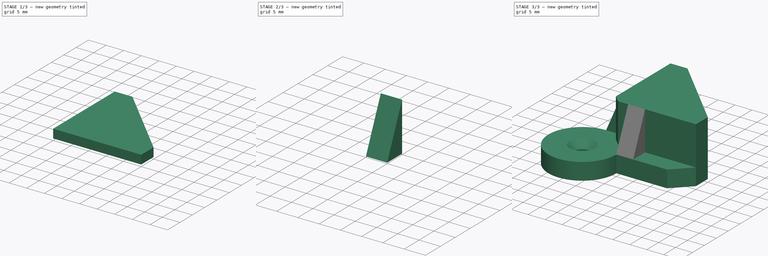
[diagram: build sequence overview — one tinted view per stage of 3, left to right]
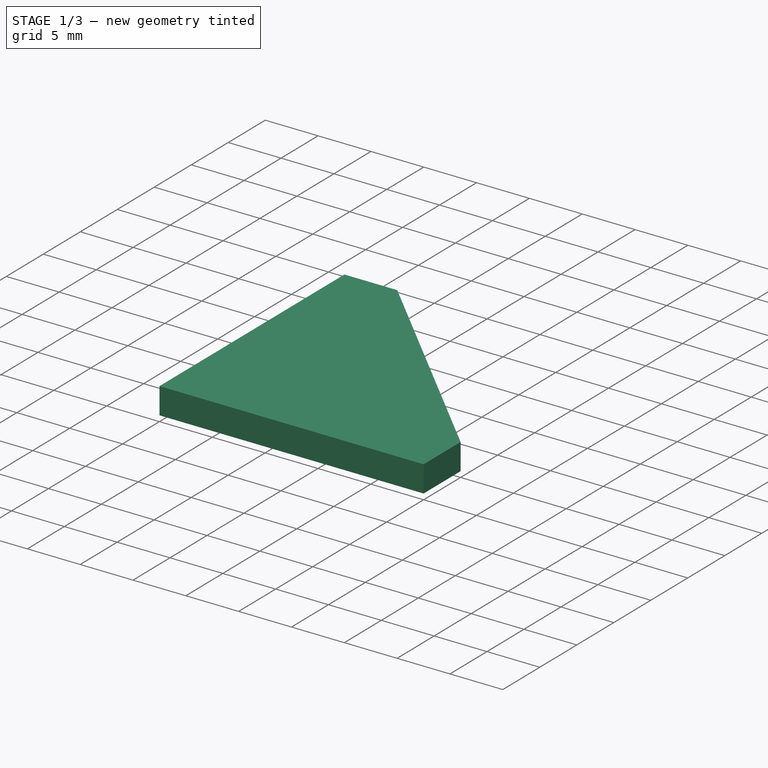
[diagram: stage 1 of 3 — iso view after this stage's code; geometry added in this stage tinted green]
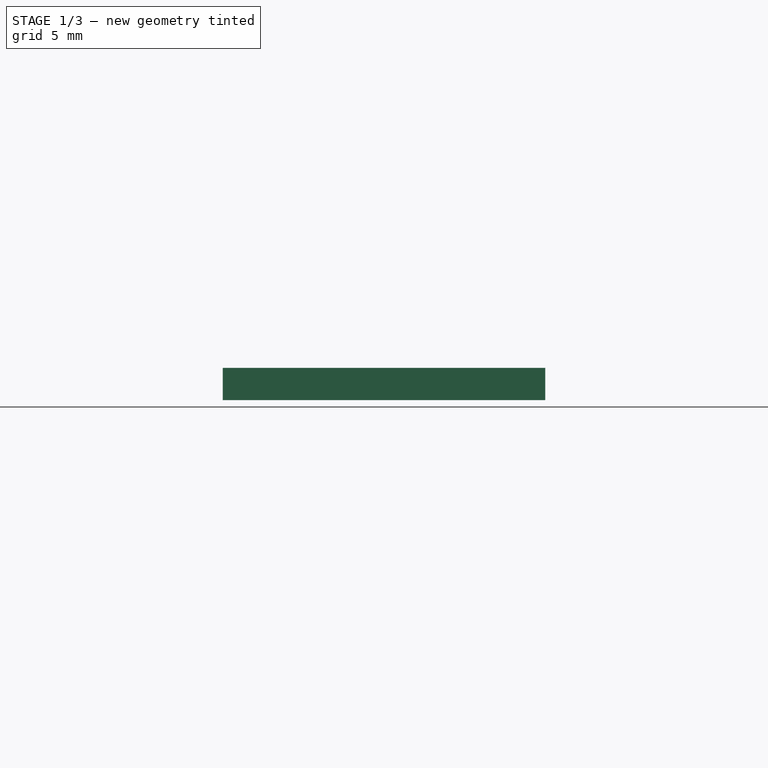
[diagram: stage 1 of 3 — front view after this stage's code; geometry added in this stage tinted green]
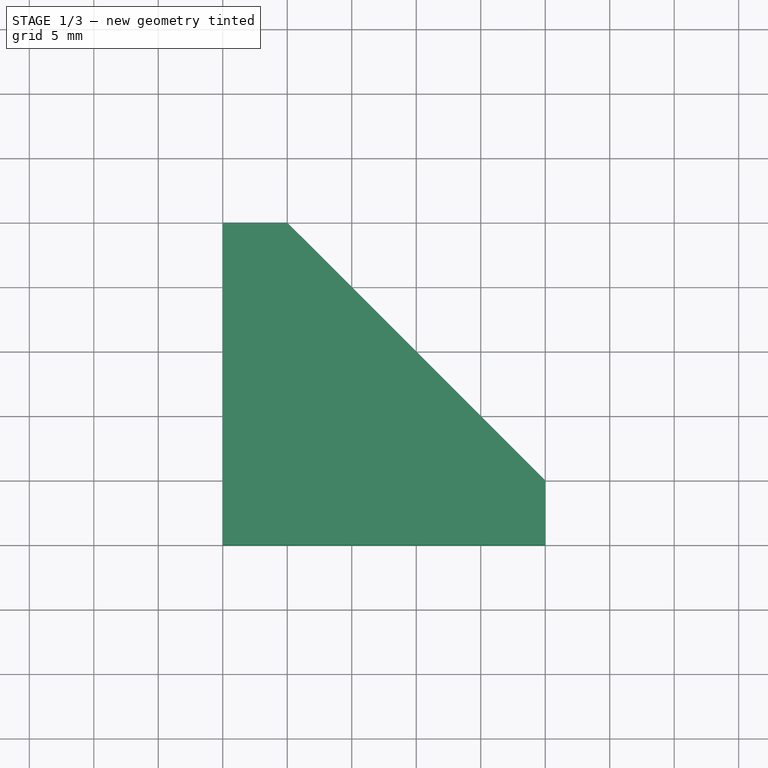
[diagram: stage 1 of 3 — top view after this stage's code; geometry added in this stage tinted green]
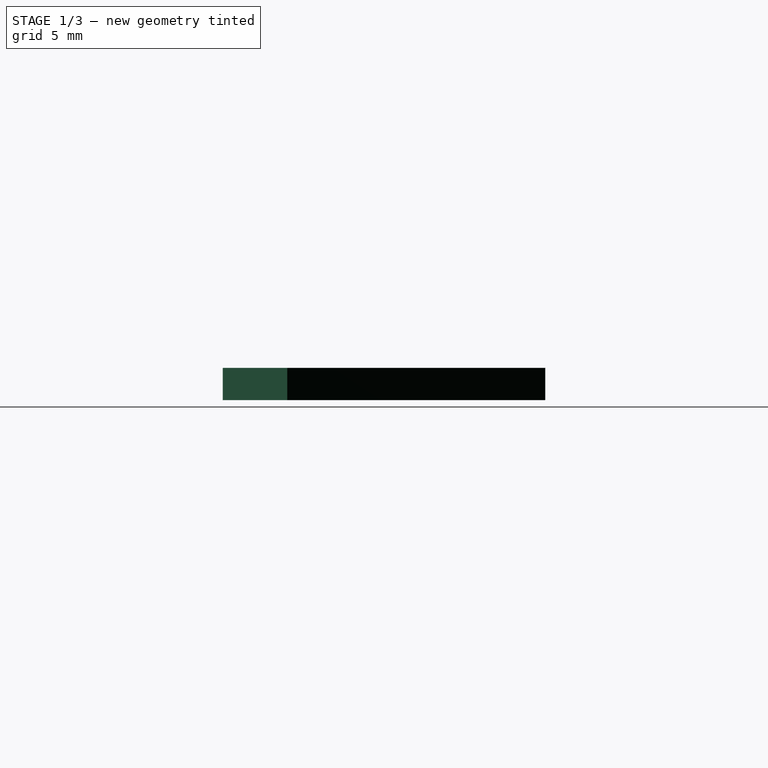
[diagram: stage 1 of 3 — right view after this stage's code; geometry added in this stage tinted green]
FCSTD DOCUMENT  (FreeCAD 0.19R)
Label: CANTONEIRA-01
License: All rights reserved
LicenseURL: http://en.wikipedia.org/wiki/All_rights_reserved
objects: Sketcher::SketchObject×4, Part::Extrusion×4, Part::MultiFuse×2, Spreadsheet::Sheet×1, Part::Mirroring×1, Part::Chamfer×1
note: 12 computed .brp shape members not serialized (recipe doc carries the construction recipe); baked Part::Feature solids carry a one-line shape summary decoded from their .brp

FEATURE [Spreadsheet::Sheet] Spreadsheet
  cells = A1=comprimento; B1(comprimento)=30; A2=largura; B2(largura)==comprimento; A3=altura; B3(altura)=14; A4=espessura; B4(espessura)=5; A5=diametro maior; B5(Diametro)=20; A6=diametro menor; B6(diametro)=3.5
FEATURE [Sketcher::SketchObject] Sketch
  FullyConstrained = true
  expr: Constraints[5] = Spreadsheet.Diametro
  expr: Constraints[23] = Spreadsheet.comprimento
  expr: Constraints[21] = Spreadsheet.espessura
  expr: Constraints[7] = Spreadsheet.diametro
  sketch-geometry (18):
    g0: LineSegment StartX=5 StartY=30 StartZ=0 EndX=10 EndY=30 EndZ=0
    g1: LineSegment StartX=30 StartY=10 StartZ=0 EndX=30 EndY=5 EndZ=0
    g2: LineSegment StartX=25 StartY=-6.89626e-11 StartZ=0 EndX=10 EndY=-6.89626e-11 EndZ=0
    g3: LineSegment StartX=30 StartY=10 StartZ=0 EndX=10 EndY=10 EndZ=0
    g4: LineSegment StartX=10 StartY=10 StartZ=0 EndX=10 EndY=30 EndZ=0
    g5: ArcOfCircle CenterX=-2.7533e-12 CenterY=3.6289e-11 CenterZ=0 NormalX=0 NormalY=0 NormalZ=1 AngleXU=0 Radius=10 StartAngle=1.5708 EndAngle=6.28319
    g6: LineSegment StartX=-2.414e-13 StartY=10 StartZ=0 EndX=-5.21648e-10 EndY=25 EndZ=0
    g7: Circle CenterX=-2.7533e-12 CenterY=3.6289e-11 CenterZ=0 NormalX=0 NormalY=0 NormalZ=1 AngleXU=0 Radius=1.75
    g8: LineSegment StartX=30 StartY=5 StartZ=0 EndX=25 EndY=-6.89626e-11 EndZ=0
    g9: LineSegment StartX=5 StartY=30 StartZ=0 EndX=-5.21648e-10 EndY=25 EndZ=0
    g10: LineSegment StartX=30 StartY=5 StartZ=0 EndX=25 EndY=5 EndZ=0
    g11: LineSegment StartX=25 StartY=5 StartZ=0 EndX=25 EndY=-6.89626e-11 EndZ=0
    g12: LineSegment StartX=25 StartY=-6.89626e-11 StartZ=0 EndX=30 EndY=-6.89626e-11 EndZ=0
    g13: LineSegment StartX=30 StartY=-6.89626e-11 StartZ=0 EndX=30 EndY=5 EndZ=0
    g14: LineSegment StartX=5 StartY=30 StartZ=0 EndX=-5.21648e-10 EndY=30 EndZ=0
    g15: LineSegment StartX=-5.21648e-10 StartY=30 StartZ=0 EndX=-5.21648e-10 EndY=25 EndZ=0
    g16: LineSegment StartX=-5.21648e-10 StartY=25 StartZ=0 EndX=5 EndY=25 EndZ=0
    g17: LineSegment StartX=5 StartY=25 StartZ=0 EndX=5 EndY=30 EndZ=0
  constraints (49):
    c: Coincident(g5,g-1)
    c: Coincident(g5,g6)
    c: Coincident(g2,g5)
    c: PointOnObject(g5,g-2)
    c: PointOnObject(g2,g-1)
    c: Diameter(g5) = 20
    c: Coincident(g7,g5)
    c: Diameter(g7) = 3.5
    c: Coincident(g1,g8)
    c: Coincident(g2,g8)
    c: Coincident(g6,g9)
    c: Horizontal(g2)
    c: Vertical(g1)
    c: Coincident(g1,g3)
    c: Horizontal(g0)
    c: Equal(g4,g3)
    c: Equal(g6,g2)
    c: Equal(g0,g1)
    c: Horizontal(g3)
    c: Vertical(g4)
    c: Coincident(g0,g4)
    c: DistanceY(g1,g1) = 5
    c: Coincident(g3,g4)
    c: DistanceX(g1) = 30
    c: Coincident(g0,g9)
    c: Coincident(g10,g11)
    c: Coincident(g11,g12)
    c: Coincident(g12,g13)
    c: Coincident(g13,g10)
    c: Horizontal(g10)
    c: Horizontal(g12)
    c: Vertical(g11)
    c: Vertical(g13)
    c: Coincident(g10,g1)
    c: Equal(g13,g1)
    c: Coincident(g2,g11)
    c: Coincident(g14,g15)
    c: Coincident(g15,g16)
    c: Coincident(g16,g17)
    c: Coincident(g17,g14)
    c: Horizontal(g14)
    c: Horizontal(g16)
    c: Vertical(g15)
    c: Vertical(g17)
    c: Coincident(g14,g0)
    c: Coincident(g15,g6)
    c: Equal(g13,g10)
    c: Equal(g17,g16)
    c: Equal(g16,g0)
FEATURE [Part::Extrusion] Extrude
  Base = -> Sketch
  Dir = (0,0,1)
  DirMode = 2
  FaceMakerClass = Part::FaceMakerBullseye
  LengthFwd = 5
  LengthRev = 0
  Solid = true
  Symmetric = false
  expr: LengthFwd = Spreadsheet.espessura
FEATURE [Sketcher::SketchObject] Sketch001
  FullyConstrained = true
  MapMode = 5
  Placement = pos=(0,0,5) rot=(0,0,1;0rad)
  Support = -> [Extrude]
  expr: Constraints[5] = Sketch.Constraints[5]
  expr: Constraints[7] = Sketch.Constraints[7]
  expr: Constraints[21] = Sketch.Constraints[21]
  expr: Constraints[23] = Sketch.Constraints[23]
  sketch-geometry (20):
    g0: LineSegment StartX=5 StartY=30 StartZ=0 EndX=10 EndY=30 EndZ=0
    g1: LineSegment StartX=30 StartY=10 StartZ=0 EndX=30 EndY=5 EndZ=0
    g2: LineSegment StartX=25 StartY=-3.45596e-11 StartZ=0 EndX=10 EndY=-3.45596e-11 EndZ=0
    g3: LineSegment StartX=30 StartY=10 StartZ=0 EndX=10 EndY=10 EndZ=0
    g4: LineSegment StartX=10 StartY=10 StartZ=0 EndX=10 EndY=30 EndZ=0
    g5: ArcOfCircle CenterX=-1.971e-12 CenterY=1.94086e-11 CenterZ=0 NormalX=0 NormalY=0 NormalZ=1 AngleXU=0 Radius=10 StartAngle=1.5708 EndAngle=6.28319
    g6: LineSegment StartX=6.998e-12 StartY=10 StartZ=0 EndX=-5.08798e-10 EndY=25 EndZ=0
    g7: Circle CenterX=-1.971e-12 CenterY=1.94086e-11 CenterZ=0 NormalX=0 NormalY=0 NormalZ=1 AngleXU=0 Radius=1.75
    g8: LineSegment StartX=30 StartY=5 StartZ=0 EndX=25 EndY=-3.45599e-11 EndZ=0
    g9: LineSegment StartX=5 StartY=30 StartZ=0 EndX=-5.08798e-10 EndY=25 EndZ=0
    g10: LineSegment StartX=30 StartY=5 StartZ=0 EndX=25 EndY=5 EndZ=0
    g11: LineSegment StartX=25 StartY=5 StartZ=0 EndX=25 EndY=-3.45599e-11 EndZ=0
    g12: LineSegment StartX=25 StartY=-3.45596e-11 StartZ=0 EndX=30 EndY=-3.45596e-11 EndZ=0
    g13: LineSegment StartX=30 StartY=-3.45596e-11 StartZ=0 EndX=30 EndY=5 EndZ=0
    g14: LineSegment StartX=5 StartY=30 StartZ=0 EndX=-5.08798e-10 EndY=30 EndZ=0
    g15: LineSegment StartX=-5.08798e-10 StartY=30 StartZ=0 EndX=-5.08798e-10 EndY=25 EndZ=0
    g16: LineSegment StartX=-5.08798e-10 StartY=25 StartZ=0 EndX=5 EndY=25 EndZ=0
    g17: LineSegment StartX=5 StartY=25 StartZ=0 EndX=5 EndY=30 EndZ=0
    g18: LineSegment StartX=5 StartY=30 StartZ=0 EndX=5 EndY=5 EndZ=0
    g19: LineSegment StartX=5 StartY=5 StartZ=0 EndX=30 EndY=5 EndZ=0
  constraints (54):
    c: Coincident(g5,g-1)
    c: Coincident(g5,g6)
    c: Coincident(g2,g5)
    c: PointOnObject(g5,g-2)
    c: PointOnObject(g2,g-1)
    c: Diameter(g5) = 20
    c: Coincident(g7,g5)
    c: Diameter(g7) = 3.5
    c: Coincident(g1,g8)
    c: Coincident(g2,g8)
    c: Coincident(g6,g9)
    c: Horizontal(g2)
    c: Vertical(g1)
    c: Coincident(g1,g3)
    c: Horizontal(g0)
    c: Equal(g4,g3)
    c: Equal(g6,g2)
    c: Equal(g0,g1)
    c: Horizontal(g3)
    c: Vertical(g4)
    c: Coincident(g0,g4)
    c: DistanceY(g1,g1) = 5
    c: Coincident(g3,g4)
    c: DistanceX(g1) = 30
    c: Coincident(g0,g9)
    c: Coincident(g10,g11)
    c: Coincident(g11,g12)
    c: Coincident(g12,g13)
    c: Coincident(g13,g10)
    c: Horizontal(g10)
    c: Horizontal(g12)
    c: Vertical(g11)
    c: Vertical(g13)
    c: Coincident(g10,g1)
    c: Equal(g13,g1)
    c: Coincident(g2,g11)
    c: Coincident(g14,g15)
    c: Coincident(g15,g16)
    c: Coincident(g16,g17)
    c: Coincident(g17,g14)
    c: Horizontal(g14)
    c: Horizontal(g16)
    c: Vertical(g15)
    c: Vertical(g17)
    c: Coincident(g14,g0)
    c: Coincident(g15,g6)
    c: Equal(g13,g10)
    c: Equal(g17,g16)
    c: Equal(g16,g0)
    c: Coincident(g0,g18)
    c: Vertical(g18)
    c: Coincident(g18,g19)
    c: Coincident(g19,g1)
    c: Horizontal(g19)
FEATURE [Part::Extrusion] Extrude001
  Base = -> Sketch001
  Dir = (0,0,1)
  DirMode = 2
  FaceMakerClass = Part::FaceMakerBullseye
  LengthFwd = 9
  LengthRev = 0
  Solid = true
  Symmetric = false
  expr: LengthFwd = Spreadsheet.altura - Spreadsheet.espessura
FEATURE [Sketcher::SketchObject] Sketch002
  FullyConstrained = true
  MapMode = 5
  Placement = pos=(0,0,14) rot=(0,0,1;0rad)
  Support = -> [Extrude001]
  expr: Constraints[5] = Sketch.Constraints[5]
  expr: Constraints[7] = Sketch.Constraints[7]
  expr: Constraints[21] = Sketch.Constraints[21]
  expr: Constraints[23] = Sketch.Constraints[23]
  sketch-geometry (21):
    g0: LineSegment StartX=5 StartY=30 StartZ=0 EndX=10 EndY=30 EndZ=0
    g1: LineSegment StartX=30 StartY=10 StartZ=0 EndX=30 EndY=5 EndZ=0
    g2: LineSegment StartX=25 StartY=-2.2e-15 StartZ=0 EndX=10 EndY=-2.2e-15 EndZ=0
    g3: LineSegment StartX=30 StartY=10 StartZ=0 EndX=10 EndY=10 EndZ=0
    g4: LineSegment StartX=10 StartY=10 StartZ=0 EndX=10 EndY=30 EndZ=0
    g5: ArcOfCircle CenterX=0 CenterY=2e-16 CenterZ=0 NormalX=0 NormalY=0 NormalZ=1 AngleXU=0 Radius=10 StartAngle=1.5708 EndAngle=6.28319
    g6: LineSegment StartX=6e-16 StartY=10 StartZ=0 EndX=9e-16 EndY=25 EndZ=0
    g7: Circle CenterX=0 CenterY=2e-16 CenterZ=0 NormalX=0 NormalY=0 NormalZ=1 AngleXU=0 Radius=1.75
    g8: LineSegment StartX=30 StartY=5 StartZ=0 EndX=25 EndY=-1.8e-15 EndZ=0
    g9: LineSegment StartX=5 StartY=30 StartZ=0 EndX=9e-16 EndY=25 EndZ=0
    g10: LineSegment StartX=30 StartY=5 StartZ=0 EndX=25 EndY=5 EndZ=0
    g11: LineSegment StartX=25 StartY=5 StartZ=0 EndX=25 EndY=-1.8e-15 EndZ=0
    g12: LineSegment StartX=25 StartY=-2.2e-15 StartZ=0 EndX=30 EndY=-2.2e-15 EndZ=0
    g13: LineSegment StartX=30 StartY=-2.2e-15 StartZ=0 EndX=30 EndY=5 EndZ=0
    g14: LineSegment StartX=5 StartY=30 StartZ=0 EndX=9e-16 EndY=30 EndZ=0
    g15: LineSegment StartX=9e-16 StartY=30 StartZ=0 EndX=9e-16 EndY=25 EndZ=0
    g16: LineSegment StartX=9e-16 StartY=25 StartZ=0 EndX=5 EndY=25 EndZ=0
    g17: LineSegment StartX=5 StartY=25 StartZ=0 EndX=5 EndY=30 EndZ=0
    g18: LineSegment StartX=10 StartY=30 StartZ=0 EndX=30 EndY=10 EndZ=0
    g19: LineSegment StartX=5 StartY=30 StartZ=0 EndX=5 EndY=5 EndZ=0
    g20: LineSegment StartX=5 StartY=5 StartZ=0 EndX=30 EndY=5 EndZ=0
  constraints (56):
    c: Coincident(g5,g-1)
    c: Coincident(g5,g6)
    c: Coincident(g2,g5)
    c: PointOnObject(g5,g-2)
    c: PointOnObject(g2,g-1)
    c: Diameter(g5) = 20
    c: Coincident(g7,g5)
    c: Diameter(g7) = 3.5
    c: Coincident(g1,g8)
    c: Coincident(g2,g8)
    c: Coincident(g6,g9)
    c: Horizontal(g2)
    c: Vertical(g1)
    c: Coincident(g1,g3)
    c: Horizontal(g0)
    c: Equal(g4,g3)
    c: Equal(g6,g2)
    c: Equal(g0,g1)
    c: Horizontal(g3)
    c: Vertical(g4)
    c: Coincident(g0,g4)
    c: DistanceY(g1,g1) = 5
    c: Coincident(g3,g4)
    c: DistanceX(g1) = 30
    c: Coincident(g0,g9)
    c: Coincident(g10,g11)
    c: Coincident(g11,g12)
    c: Coincident(g12,g13)
    c: Coincident(g13,g10)
    c: Horizontal(g10)
    c: Horizontal(g12)
    c: Vertical(g11)
    c: Vertical(g13)
    c: Coincident(g10,g1)
    c: Equal(g13,g1)
    c: Coincident(g2,g11)
    c: Coincident(g14,g15)
    c: Coincident(g15,g16)
    c: Coincident(g16,g17)
    c: Coincident(g17,g14)
    c: Horizontal(g14)
    c: Horizontal(g16)
    c: Vertical(g15)
    c: Vertical(g17)
    c: Coincident(g14,g0)
    c: Coincident(g15,g6)
    c: Equal(g13,g10)
    c: Equal(g17,g16)
    c: Equal(g16,g0)
    c: Coincident(g18,g0)
    c: Coincident(g18,g1)
    c: Coincident(g0,g19)
    c: Vertical(g19)
    c: Coincident(g19,g20)
    c: Coincident(g20,g1)
    c: Horizontal(g20)
FEATURE [Part::Extrusion] Extrude002
  Base = -> Sketch002
  Dir = (0,0,1)
  DirMode = 2
  FaceMakerClass = Part::FaceMakerBullseye
  LengthFwd = 2.5
  LengthRev = 0
  Solid = true
  Symmetric = false
  expr: LengthFwd = Spreadsheet.espessura / 2
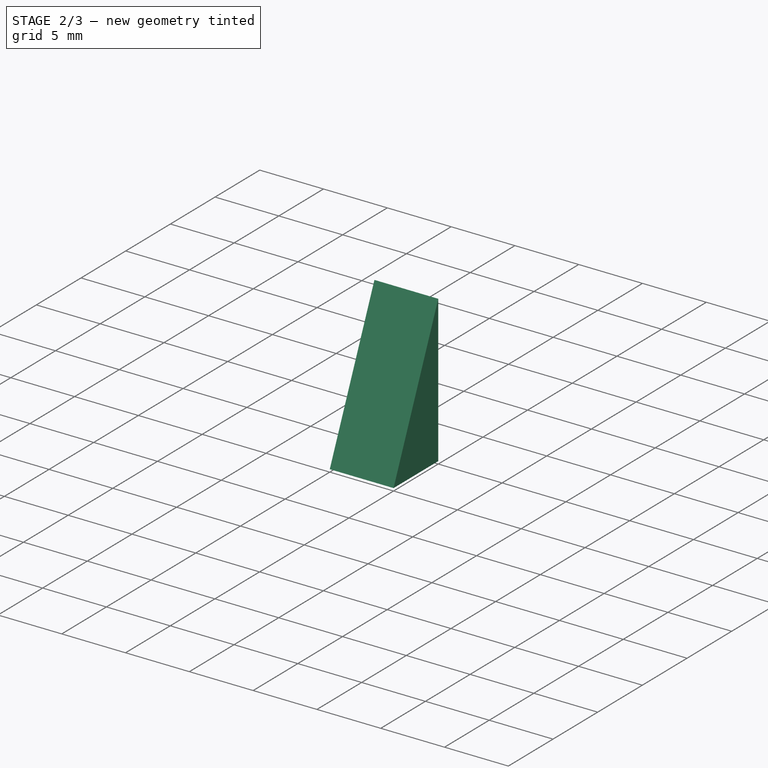
[diagram: stage 2 of 3 — iso view after this stage's code; geometry added in this stage tinted green]
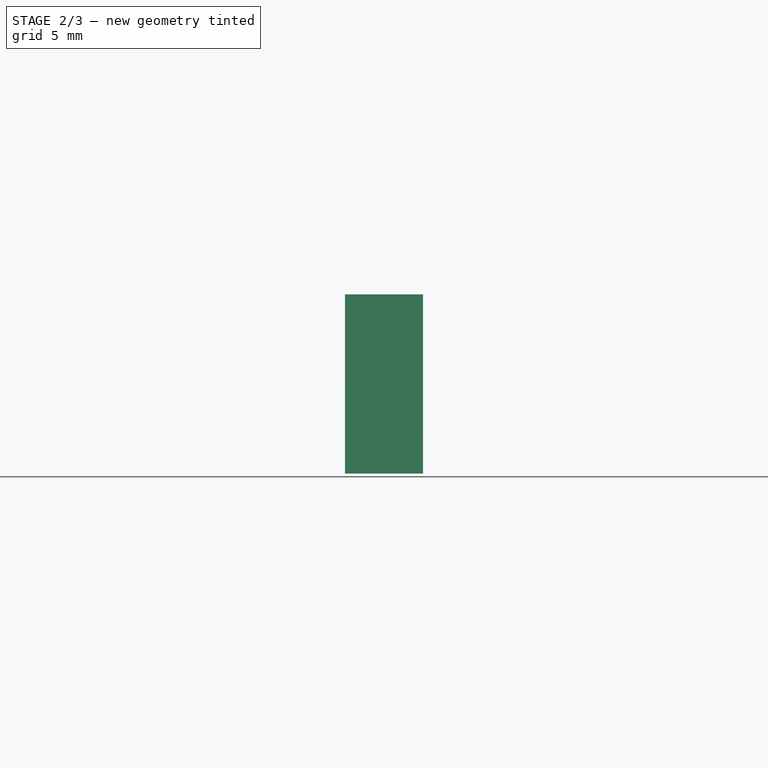
[diagram: stage 2 of 3 — front view after this stage's code; geometry added in this stage tinted green]
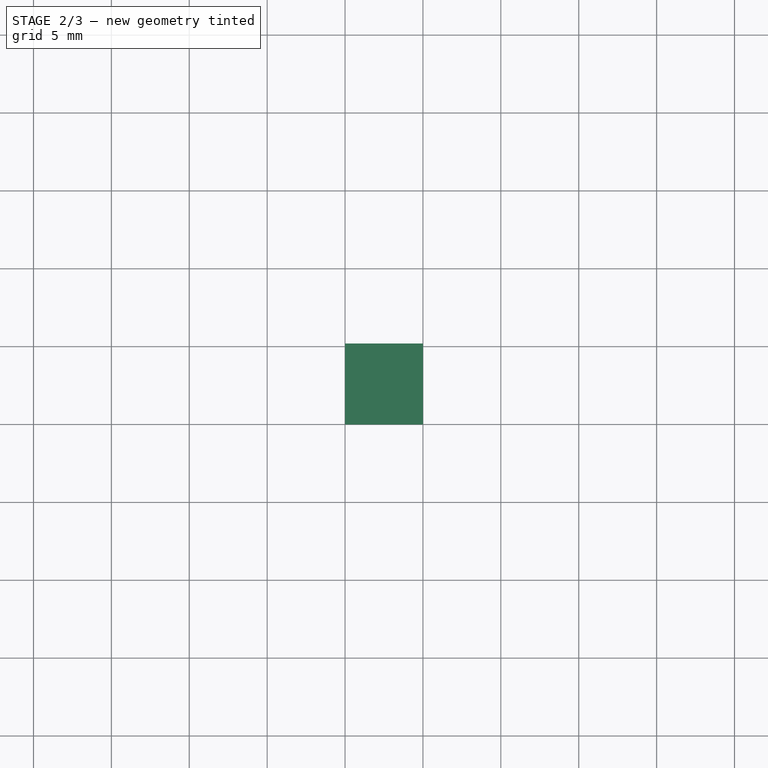
[diagram: stage 2 of 3 — top view after this stage's code; geometry added in this stage tinted green]
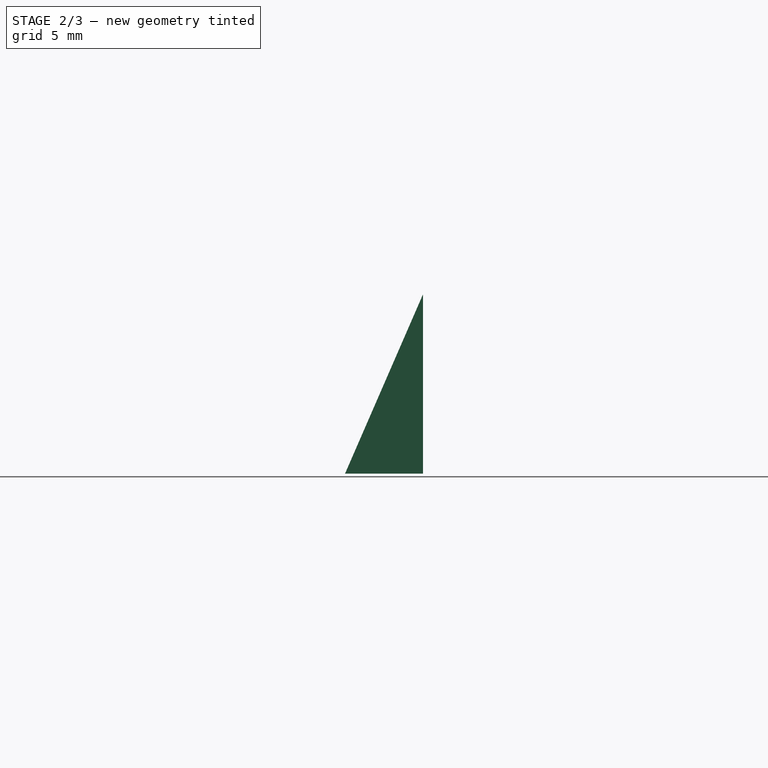
[diagram: stage 2 of 3 — right view after this stage's code; geometry added in this stage tinted green]
FEATURE [Part::MultiFuse] Fusion
  Refine = true
  Shapes = -> [Extrude,Extrude001,Extrude002]
FEATURE [Sketcher::SketchObject] Sketch003
  ExternalGeometry = -> [Fusion]
  FullyConstrained = true
  MapMode = 5
  Placement = pos=(5,0,-1.48154e-10) rot=(0.57735,-0.57735,-0.57735;2.0944rad)
  Support = -> [Fusion]
  sketch-geometry (3):
    g0: LineSegment StartX=-5 StartY=16.5 StartZ=0 EndX=-5 EndY=5 EndZ=0
    g1: LineSegment StartX=-5 StartY=5 StartZ=0 EndX=4.95426e-11 EndY=5 EndZ=0
    g2: LineSegment StartX=4.95426e-11 StartY=5 StartZ=0 EndX=-5 EndY=16.5 EndZ=0
  constraints (7):
    c: Coincident(g-3,g0)
    c: Vertical(g0)
    c: Coincident(g0,g1)
    c: Coincident(g1,g-4)
    c: Horizontal(g1)
    c: Coincident(g1,g2)
    c: Coincident(g2,g0)
FEATURE [Part::Extrusion] Extrude003
  Base = -> Sketch003
  Dir = (1,0,0)
  DirMode = 0
  FaceMakerClass = Part::FaceMakerBullseye
  LengthFwd = 5
  LengthRev = 0
  Placement = pos=(5,0,0) rot=(0,0,1;0rad)
  Solid = true
  Symmetric = false
  expr: .Placement.Base.x = Spreadsheet.espessura
  expr: LengthFwd = Spreadsheet.espessura
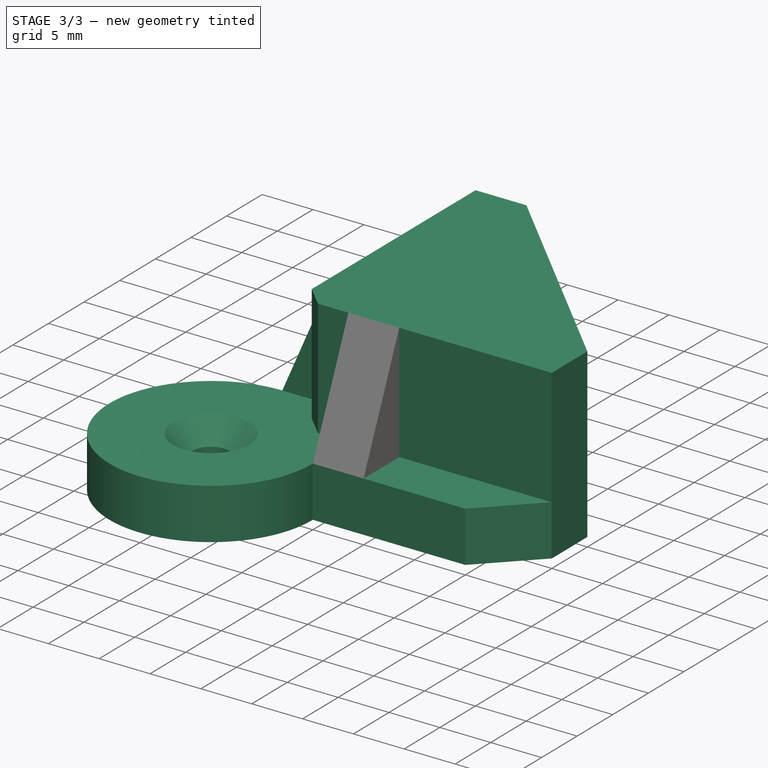
[diagram: stage 3 of 3 — iso view after this stage's code; geometry added in this stage tinted green]
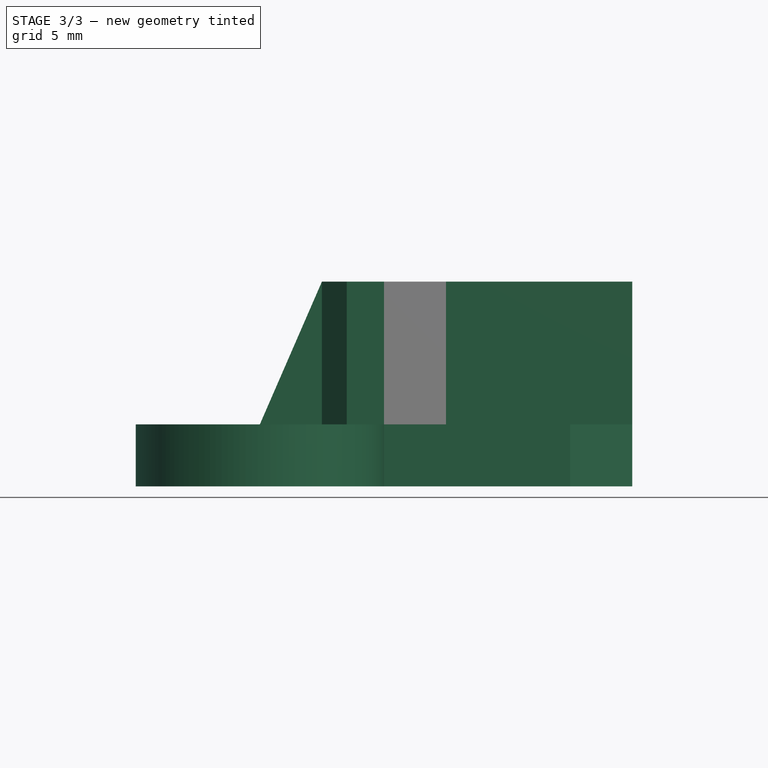
[diagram: stage 3 of 3 — front view after this stage's code; geometry added in this stage tinted green]
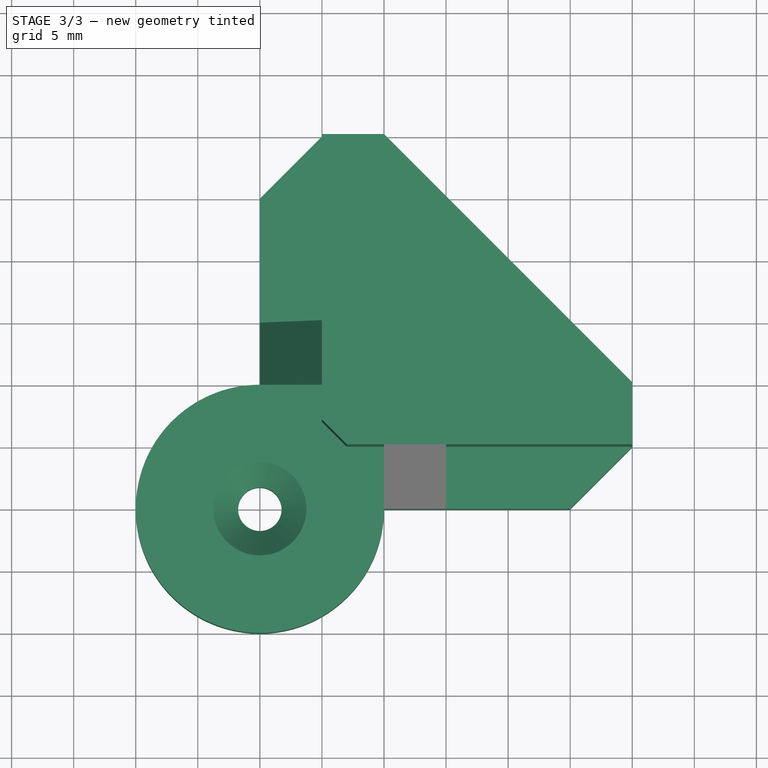
[diagram: stage 3 of 3 — top view after this stage's code; geometry added in this stage tinted green]
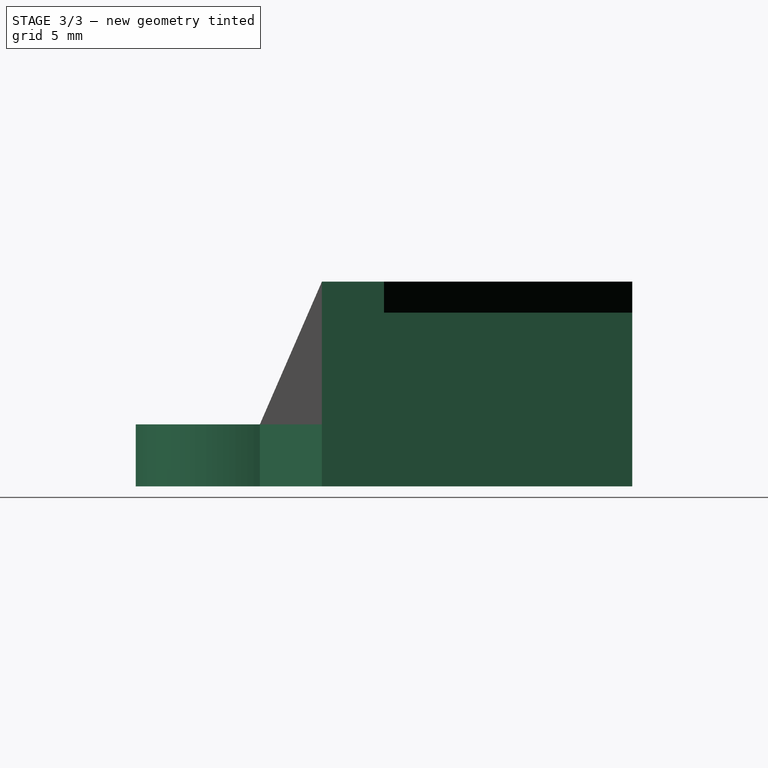
[diagram: stage 3 of 3 — right view after this stage's code; geometry added in this stage tinted green]
FEATURE [Part::Mirroring] mirror  label="Extrude003 (mirrored)"
  Base = (5,5,2)
  Normal = (-0.707107,0.707107,0)
  Source = -> Extrude003
FEATURE [Part::MultiFuse] Fusion001
  Refine = true
  Shapes = -> [Fusion,Extrude003,mirror]
FEATURE [Part::Chamfer] Chamfer
  Base = -> Fusion001
  Edges = 2 edges r=2: [Edge43,Edge53]
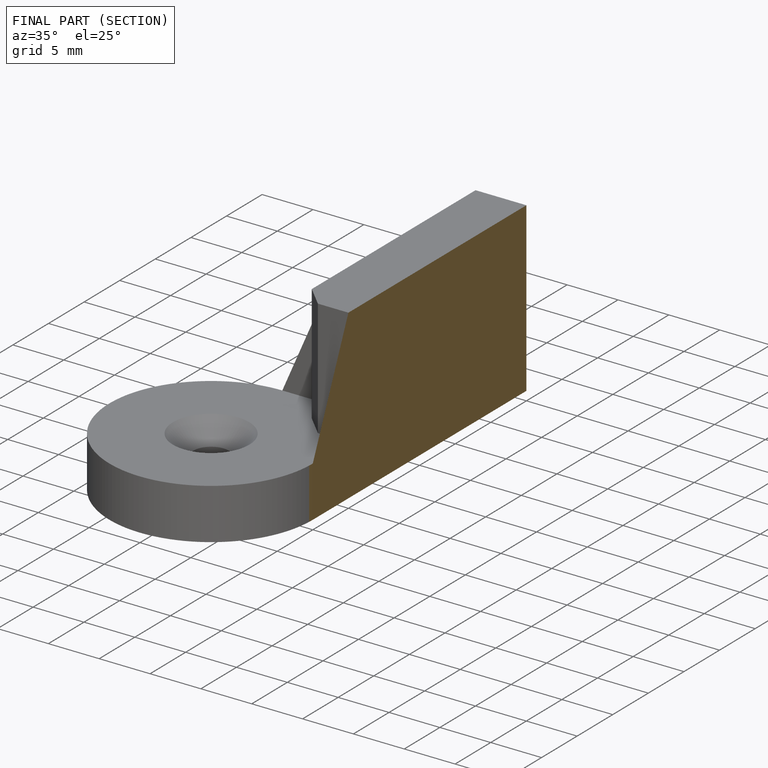
[diagram: finished part — half-section view (interior)]
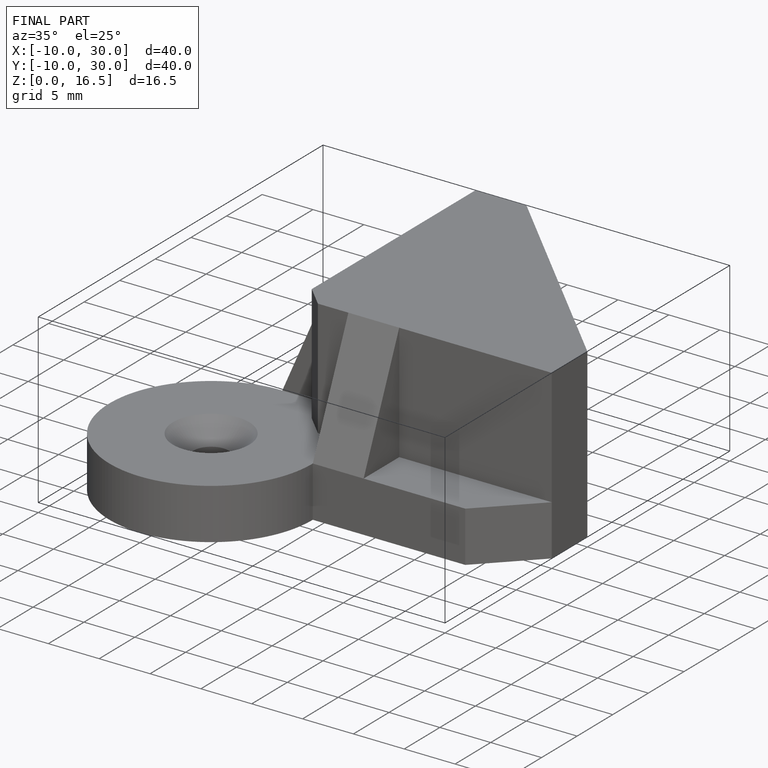
[diagram: finished part — iso view with bounding-box wireframe]
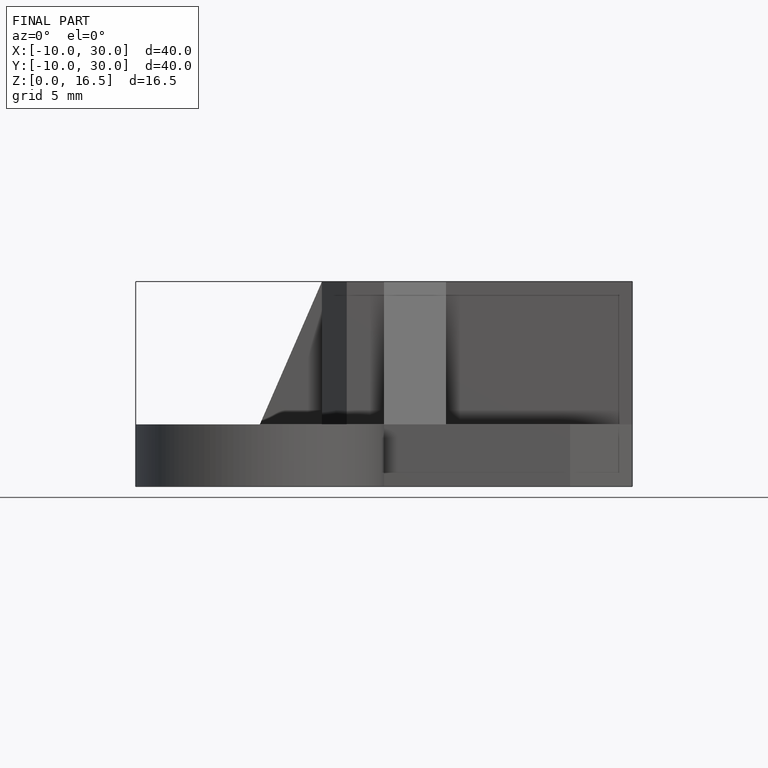
[diagram: finished part — front view with bounding-box wireframe]
